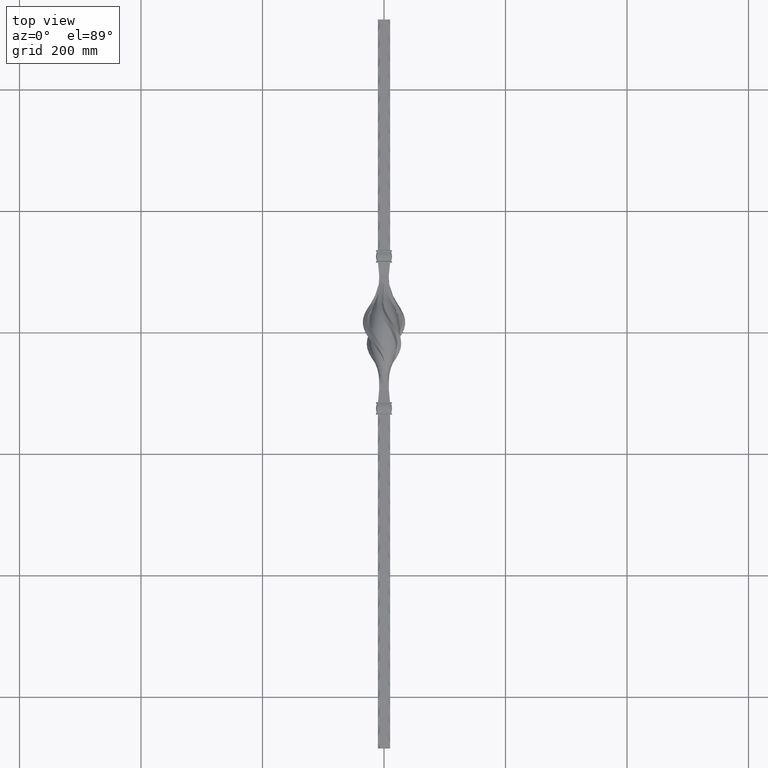
[diagram: clean part render]
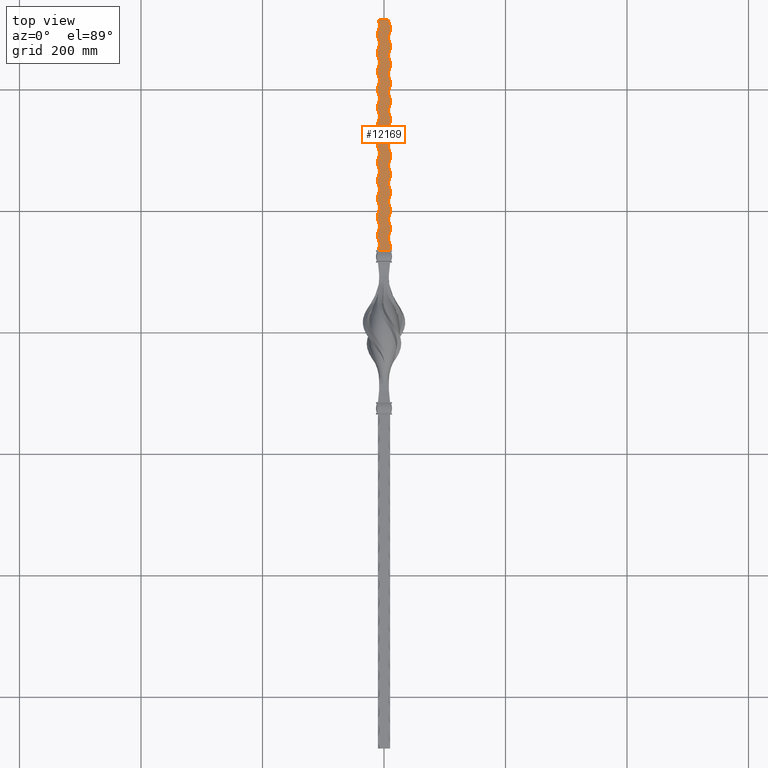
[diagram: same view with one face highlighted and labeled with its STEP entity id]
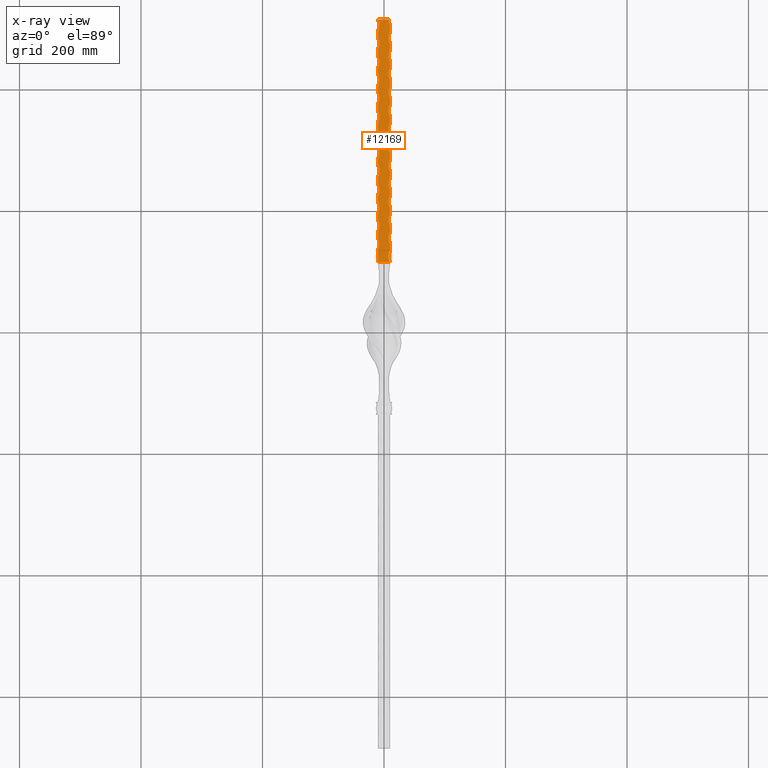
[diagram: x-ray of the same camera — body ghosted, the highlighted face saturated]
A machine part, top view. The second image highlights one B-rep face of the part: STEP entity #12169.
The next image is the same camera in x-ray: the body ghosted, the highlighted face saturated — about 0% of this face is hidden behind the body in this view.
In plain terms, the highlighted planar face has unit normal (0, 0, -1).
Its self-contained STEP definition (entity closure, byte-faithful):
#119 = LINE ( 'NONE', #20293, #838 ) ;
#448 = VERTEX_POINT ( 'NONE', #4737 ) ;
#496 = VERTEX_POINT ( 'NONE', #9096 ) ;
#573 = CARTESIAN_POINT ( 'NONE',  ( 28.74999999999810996, 335.0000000000000568, 10.00000000000000533 ) ) ;
#771 = CARTESIAN_POINT ( 'NONE',  ( -10.00000000000000000, 130.0000000000000000, 10.00000000000000533 ) ) ;
#838 = VECTOR ( 'NONE', #8634, 1000.000000000000000 ) ;
#866 = ORIENTED_EDGE ( 'NONE', *, *, #19109, .F. ) ;
#936 = CARTESIAN_POINT ( 'NONE',  ( 10.00000000000000000, 130.0000000000000000, 10.00000000000000533 ) ) ;
#1180 = VERTEX_POINT ( 'NONE', #9942 ) ;
#1424 = DIRECTION ( 'NONE',  ( -0.000000000000000000, -1.000000000000000000, -0.000000000000000000 ) ) ;
#1490 = ORIENTED_EDGE ( 'NONE', *, *, #21829, .F. ) ;
#1568 = VERTEX_POINT ( 'NONE', #8354 ) ;
#1588 = AXIS2_PLACEMENT_3D ( 'NONE', #17207, #6081, #6003 ) ;
#1601 = LINE ( 'NONE', #10842, #12088 ) ;
#1648 = CARTESIAN_POINT ( 'NONE',  ( -10.00000000000029132, 195.0000000000000568, 10.00000000000000533 ) ) ;
#1725 = ORIENTED_EDGE ( 'NONE', *, *, #19600, .F. ) ;
#1738 = EDGE_CURVE ( 'NONE', #7084, #19261, #13994, .T. ) ;
#1765 = EDGE_CURVE ( 'NONE', #8847, #1568, #6606, .T. ) ;
#1853 = EDGE_CURVE ( 'NONE', #5916, #5891, #21262, .T. ) ;
#1931 = CARTESIAN_POINT ( 'NONE',  ( 9.999999999998074429, 255.0000000000000568, 10.00000000000000533 ) ) ;
#2146 = EDGE_CURVE ( 'NONE', #12802, #26188, #18154, .T. ) ;
#2325 = CARTESIAN_POINT ( 'NONE',  ( 28.74999999999810996, 125.0000000000000000, 10.00000000000000533 ) ) ;
#2348 = ORIENTED_EDGE ( 'NONE', *, *, #1765, .F. ) ;
#2359 = DIRECTION ( 'NONE',  ( -1.000000000000000000, 0.000000000000000000, 0.000000000000000000 ) ) ;
#2425 = DIRECTION ( 'NONE',  ( -1.000000000000000000, 0.000000000000000000, 0.000000000000000000 ) ) ;
#2550 = CARTESIAN_POINT ( 'NONE',  ( 9.999999999998076206, 385.0000000000000000, 10.00000000000000533 ) ) ;
#2554 = EDGE_CURVE ( 'NONE', #25425, #20757, #19492, .T. ) ;
#2676 = DIRECTION ( 'NONE',  ( -1.000000000000000000, 0.000000000000000000, 0.000000000000000000 ) ) ;
#2790 = DIRECTION ( 'NONE',  ( -0.000000000000000000, -1.000000000000000000, -0.000000000000000000 ) ) ;
#2812 = CARTESIAN_POINT ( 'NONE',  ( -28.75000000000075318, 325.0000000000000568, 10.00000000000000533 ) ) ;
#2838 = VERTEX_POINT ( 'NONE', #18184 ) ;
#2880 = AXIS2_PLACEMENT_3D ( 'NONE', #20371, #11434, #11328 ) ;
#2893 = VERTEX_POINT ( 'NONE', #12645 ) ;
#2912 = VECTOR ( 'NONE', #27859, 1000.000000000000000 ) ;
#2990 = AXIS2_PLACEMENT_3D ( 'NONE', #22147, #13145, #9017 ) ;
#3002 = LINE ( 'NONE', #22564, #26957 ) ;
#3136 = CARTESIAN_POINT ( 'NONE',  ( -28.75000000000130385, 475.0000000000000568, 10.00000000000000533 ) ) ;
#3211 = EDGE_CURVE ( 'NONE', #6909, #5113, #9001, .T. ) ;
#3242 = VECTOR ( 'NONE', #20435, 1000.000000000000000 ) ;
#3345 = CARTESIAN_POINT ( 'NONE',  ( 9.999999999998076206, 475.0000000000000568, 10.00000000000000533 ) ) ;
#3443 = VECTOR ( 'NONE', #13553, 1000.000000000000000 ) ;
#3493 = EDGE_CURVE ( 'NONE', #1180, #2893, #11811, .T. ) ;
#3592 = CIRCLE ( 'NONE', #5307, 21.25000000000003197 ) ;
#3679 = CARTESIAN_POINT ( 'NONE',  ( -10.00000000000072653, 315.0000000000000568, 10.00000000000000533 ) ) ;
#3690 = VERTEX_POINT ( 'NONE', #24205 ) ;
#3745 = VERTEX_POINT ( 'NONE', #15485 ) ;
#3979 = ORIENTED_EDGE ( 'NONE', *, *, #6799, .F. ) ;
#4029 = VERTEX_POINT ( 'NONE', #24724 ) ;
#4060 = LINE ( 'NONE', #10410, #6471 ) ;
#4112 = DIRECTION ( 'NONE',  ( 0.000000000000000000, -0.000000000000000000, 1.000000000000000000 ) ) ;
#4198 = EDGE_CURVE ( 'NONE', #2838, #3690, #12152, .T. ) ;
#4252 = VECTOR ( 'NONE', #25484, 1000.000000000000000 ) ;
#4511 = VECTOR ( 'NONE', #16256, 1000.000000000000000 ) ;
#4573 = CARTESIAN_POINT ( 'NONE',  ( -28.75000000000108002, 415.0000000000000568, 10.00000000000000533 ) ) ;
#4708 = AXIS2_PLACEMENT_3D ( 'NONE', #2325, #20352, #2425 ) ;
#4713 = AXIS2_PLACEMENT_3D ( 'NONE', #9015, #6665, #24592 ) ;
#4737 = CARTESIAN_POINT ( 'NONE',  ( -10.00000000000029132, 215.0000000000000853, 10.00000000000000533 ) ) ;
#4776 = EDGE_CURVE ( 'NONE', #27488, #7470, #9636, .T. ) ;
#4807 = CIRCLE ( 'NONE', #10435, 21.25000000000003197 ) ;
#4820 = EDGE_CURVE ( 'NONE', #6678, #28637, #15565, .T. ) ;
#4877 = CARTESIAN_POINT ( 'NONE',  ( -10.00000000000000000, 114.9999999999999858, 10.00000000000000533 ) ) ;
#4917 = DIRECTION ( 'NONE',  ( 0.000000000000000000, -0.000000000000000000, 1.000000000000000000 ) ) ;
#4967 = DIRECTION ( 'NONE',  ( -1.000000000000000000, 0.000000000000000000, 0.000000000000000000 ) ) ;
#5034 = CARTESIAN_POINT ( 'NONE',  ( -10.00000000000000000, 130.0000000000000000, 10.00000000000000533 ) ) ;
#5060 = AXIS2_PLACEMENT_3D ( 'NONE', #21716, #4112, #10938 ) ;
#5113 = VERTEX_POINT ( 'NONE', #22586 ) ;
#5307 = AXIS2_PLACEMENT_3D ( 'NONE', #573, #11874, #20818 ) ;
#5425 = LINE ( 'NONE', #21426, #26608 ) ;
#5447 = CARTESIAN_POINT ( 'NONE',  ( 9.999999999998074429, 235.0000000000000284, 10.00000000000000533 ) ) ;
#5633 = DIRECTION ( 'NONE',  ( -0.000000000000000000, -1.000000000000000000, -0.000000000000000000 ) ) ;
#5682 = DIRECTION ( 'NONE',  ( 1.000000000000000000, 0.000000000000000000, 0.000000000000000000 ) ) ;
#5734 = EDGE_CURVE ( 'NONE', #27488, #23081, #27919, .T. ) ;
#5758 = EDGE_CURVE ( 'NONE', #15497, #26517, #27538, .T. ) ;
#5796 = DIRECTION ( 'NONE',  ( -1.000000000000000000, 0.000000000000000000, 0.000000000000000000 ) ) ;
#5817 = VERTEX_POINT ( 'NONE', #3679 ) ;
#5844 = ORIENTED_EDGE ( 'NONE', *, *, #3493, .F. ) ;
#5889 = VECTOR ( 'NONE', #22095, 1000.000000000000000 ) ;
#5891 = VERTEX_POINT ( 'NONE', #17339 ) ;
#5916 = VERTEX_POINT ( 'NONE', #6309 ) ;
#5991 = VECTOR ( 'NONE', #8640, 1000.000000000000000 ) ;
#5994 = EDGE_CURVE ( 'NONE', #27847, #13154, #8282, .T. ) ;
#6003 = DIRECTION ( 'NONE',  ( -1.000000000000000000, 0.000000000000000000, 0.000000000000000000 ) ) ;
#6028 = DIRECTION ( 'NONE',  ( 0.000000000000000000, -0.000000000000000000, 1.000000000000000000 ) ) ;
#6080 = ORIENTED_EDGE ( 'NONE', *, *, #17722, .T. ) ;
#6081 = DIRECTION ( 'NONE',  ( 0.000000000000000000, -0.000000000000000000, 1.000000000000000000 ) ) ;
#6168 = VECTOR ( 'NONE', #20648, 1000.000000000000000 ) ;
#6217 = LINE ( 'NONE', #23109, #4511 ) ;
#6220 = CARTESIAN_POINT ( 'NONE',  ( 10.00000000000000000, 130.0000000000000000, 10.00000000000000533 ) ) ;
#6275 = CARTESIAN_POINT ( 'NONE',  ( -28.75000000000031619, 205.0000000000000568, 10.00000000000000533 ) ) ;
#6309 = CARTESIAN_POINT ( 'NONE',  ( -10.00000000000105516, 405.0000000000000000, 10.00000000000000533 ) ) ;
#6384 = ORIENTED_EDGE ( 'NONE', *, *, #8438, .T. ) ;
#6471 = VECTOR ( 'NONE', #14896, 1000.000000000000000 ) ;
#6606 = CIRCLE ( 'NONE', #10210, 21.25000000000002487 ) ;
#6627 = CARTESIAN_POINT ( 'NONE',  ( -10.00000000000050804, 275.0000000000000000, 10.00000000000000533 ) ) ;
#6636 = CARTESIAN_POINT ( 'NONE',  ( 9.999999999998074429, 375.0000000000000568, 10.00000000000000533 ) ) ;
#6665 = DIRECTION ( 'NONE',  ( 0.000000000000000000, -0.000000000000000000, 1.000000000000000000 ) ) ;
#6678 = VERTEX_POINT ( 'NONE', #16784 ) ;
#6699 = CARTESIAN_POINT ( 'NONE',  ( 9.999999999998076206, 405.0000000000000000, 10.00000000000000533 ) ) ;
#6776 = CARTESIAN_POINT ( 'NONE',  ( -10.00000000000116351, 435.0000000000000568, 10.00000000000000533 ) ) ;
#6799 = EDGE_CURVE ( 'NONE', #27029, #25618, #24248, .T. ) ;
#6909 = VERTEX_POINT ( 'NONE', #3345 ) ;
#6925 = DIRECTION ( 'NONE',  ( -1.000000000000000000, 0.000000000000000000, 0.000000000000000000 ) ) ;
#6963 = VERTEX_POINT ( 'NONE', #14752 ) ;
#7055 = CARTESIAN_POINT ( 'NONE',  ( -10.00000000000018296, 185.0000000000000568, 10.00000000000000533 ) ) ;
#7061 = CARTESIAN_POINT ( 'NONE',  ( -10.00000000000127365, 465.0000000000000000, 10.00000000000000533 ) ) ;
#7084 = VERTEX_POINT ( 'NONE', #6699 ) ;
#7115 = CARTESIAN_POINT ( 'NONE',  ( 28.74999999999810996, 485.0000000000000568, 10.00000000000000533 ) ) ;
#7161 = ORIENTED_EDGE ( 'NONE', *, *, #17005, .F. ) ;
#7207 = AXIS2_PLACEMENT_3D ( 'NONE', #17359, #23942, #5796 ) ;
#7289 = CARTESIAN_POINT ( 'NONE',  ( -28.75000000000141043, 505.0000000000000000, 10.00000000000000533 ) ) ;
#7367 = CIRCLE ( 'NONE', #4713, 21.25000000000002487 ) ;
#7398 = ORIENTED_EDGE ( 'NONE', *, *, #15160, .F. ) ;
#7400 = ORIENTED_EDGE ( 'NONE', *, *, #9496, .T. ) ;
#7470 = VERTEX_POINT ( 'NONE', #6627 ) ;
#7626 = FACE_OUTER_BOUND ( 'NONE', #25868, .T. ) ;
#7631 = ORIENTED_EDGE ( 'NONE', *, *, #2554, .F. ) ;
#7646 = LINE ( 'NONE', #936, #12202 ) ;
#7722 = EDGE_CURVE ( 'NONE', #15475, #18776, #27653, .T. ) ;
#7876 = VERTEX_POINT ( 'NONE', #18555 ) ;
#7977 = DIRECTION ( 'NONE',  ( -0.000000000000000000, -1.000000000000000000, -0.000000000000000000 ) ) ;
#8029 = ORIENTED_EDGE ( 'NONE', *, *, #12702, .F. ) ;
#8070 = CIRCLE ( 'NONE', #9784, 21.25000000000002487 ) ;
#8196 = AXIS2_PLACEMENT_3D ( 'NONE', #12869, #6028, #21866 ) ;
#8282 = CIRCLE ( 'NONE', #26919, 21.25000000000003197 ) ;
#8293 = CARTESIAN_POINT ( 'NONE',  ( -28.75000000000053646, 265.0000000000000000, 10.00000000000000533 ) ) ;
#8298 = CARTESIAN_POINT ( 'NONE',  ( -10.00000000000000000, 130.0000000000000000, 10.00000000000000533 ) ) ;
#8354 = CARTESIAN_POINT ( 'NONE',  ( -10.00000000000007283, 155.0000000000000284, 10.00000000000000533 ) ) ;
#8371 = ORIENTED_EDGE ( 'NONE', *, *, #9973, .F. ) ;
#8438 = EDGE_CURVE ( 'NONE', #15497, #10127, #19297, .T. ) ;
#8634 = DIRECTION ( 'NONE',  ( -0.000000000000000000, -1.000000000000000000, -0.000000000000000000 ) ) ;
#8640 = DIRECTION ( 'NONE',  ( -0.000000000000000000, -1.000000000000000000, -0.000000000000000000 ) ) ;
#8766 = CARTESIAN_POINT ( 'NONE',  ( -10.00000000000000000, 130.0000000000000000, 10.00000000000000533 ) ) ;
#8847 = VERTEX_POINT ( 'NONE', #27958 ) ;
#8853 = CARTESIAN_POINT ( 'NONE',  ( -28.75000000000010303, 145.0000000000000284, 10.00000000000000533 ) ) ;
#8864 = EDGE_CURVE ( 'NONE', #15715, #496, #28630, .T. ) ;
#9001 = LINE ( 'NONE', #24247, #19152 ) ;
#9015 = CARTESIAN_POINT ( 'NONE',  ( -28.75000000000086686, 355.0000000000000568, 10.00000000000000533 ) ) ;
#9017 = DIRECTION ( 'NONE',  ( -1.000000000000000000, 0.000000000000000000, 0.000000000000000000 ) ) ;
#9096 = CARTESIAN_POINT ( 'NONE',  ( 10.00000000000000000, 114.9999999999999858, 10.00000000000000533 ) ) ;
#9164 = AXIS2_PLACEMENT_3D ( 'NONE', #22238, #13046, #19930 ) ;
#9222 = CIRCLE ( 'NONE', #18713, 21.25000000000002487 ) ;
#9496 = EDGE_CURVE ( 'NONE', #16437, #14079, #14746, .T. ) ;
#9507 = ORIENTED_EDGE ( 'NONE', *, *, #1853, .T. ) ;
#9636 = CIRCLE ( 'NONE', #26073, 21.25000000000002842 ) ;
#9770 = DIRECTION ( 'NONE',  ( 0.000000000000000000, -0.000000000000000000, 1.000000000000000000 ) ) ;
#9784 = AXIS2_PLACEMENT_3D ( 'NONE', #2812, #11785, #18397 ) ;
#9795 = ORIENTED_EDGE ( 'NONE', *, *, #20478, .F. ) ;
#9815 = DIRECTION ( 'NONE',  ( 0.000000000000000000, -0.000000000000000000, 1.000000000000000000 ) ) ;
#9942 = CARTESIAN_POINT ( 'NONE',  ( -10.00000000000000000, 515.0000000000000000, 10.00000000000000533 ) ) ;
#9973 = EDGE_CURVE ( 'NONE', #12977, #14079, #7367, .T. ) ;
#10029 = EDGE_CURVE ( 'NONE', #5817, #22692, #8070, .T. ) ;
#10092 = CARTESIAN_POINT ( 'NONE',  ( -10.00000000000000000, 114.9999999999999858, 10.00000000000000533 ) ) ;
#10127 = VERTEX_POINT ( 'NONE', #14318 ) ;
#10182 = EDGE_CURVE ( 'NONE', #25618, #12802, #13665, .T. ) ;
#10210 = AXIS2_PLACEMENT_3D ( 'NONE', #8853, #13474, #2359 ) ;
#10293 = CARTESIAN_POINT ( 'NONE',  ( -10.00000000000000000, 130.0000000000000000, 10.00000000000000533 ) ) ;
#10307 = CIRCLE ( 'NONE', #21259, 21.25000000000003197 ) ;
#10362 = VECTOR ( 'NONE', #15002, 1000.000000000000000 ) ;
#10369 = AXIS2_PLACEMENT_3D ( 'NONE', #15085, #24283, #26483 ) ;
#10410 = CARTESIAN_POINT ( 'NONE',  ( -10.00000000000000000, 130.0000000000000000, 10.00000000000000533 ) ) ;
#10435 = AXIS2_PLACEMENT_3D ( 'NONE', #27709, #25298, #18811 ) ;
#10517 = CARTESIAN_POINT ( 'NONE',  ( -10.00000000000072653, 335.0000000000000568, 10.00000000000000533 ) ) ;
#10649 = DIRECTION ( 'NONE',  ( -1.000000000000000000, 0.000000000000000000, 0.000000000000000000 ) ) ;
#10662 = ORIENTED_EDGE ( 'NONE', *, *, #18985, .F. ) ;
#10842 = CARTESIAN_POINT ( 'NONE',  ( 10.00000000000000000, 130.0000000000000000, 10.00000000000000533 ) ) ;
#10896 = ORIENTED_EDGE ( 'NONE', *, *, #10182, .F. ) ;
#10938 = DIRECTION ( 'NONE',  ( -1.000000000000000000, 0.000000000000000000, 0.000000000000000000 ) ) ;
#11019 = AXIS2_PLACEMENT_3D ( 'NONE', #25086, #9815, #25180 ) ;
#11090 = VERTEX_POINT ( 'NONE', #23642 ) ;
#11297 = EDGE_CURVE ( 'NONE', #5916, #10127, #24738, .T. ) ;
#11328 = DIRECTION ( 'NONE',  ( -1.000000000000000000, 0.000000000000000000, 0.000000000000000000 ) ) ;
#11421 = LINE ( 'NONE', #28273, #10362 ) ;
#11434 = DIRECTION ( 'NONE',  ( 0.000000000000000000, -0.000000000000000000, 1.000000000000000000 ) ) ;
#11442 = DIRECTION ( 'NONE',  ( 0.000000000000000000, -0.000000000000000000, 1.000000000000000000 ) ) ;
#11460 = CARTESIAN_POINT ( 'NONE',  ( 28.74999999999810996, 305.0000000000000568, 10.00000000000000533 ) ) ;
#11646 = CARTESIAN_POINT ( 'NONE',  ( 9.999999999998074429, 135.0000000000000000, 10.00000000000000533 ) ) ;
#11665 = EDGE_CURVE ( 'NONE', #3690, #14425, #23295, .T. ) ;
#11785 = DIRECTION ( 'NONE',  ( 0.000000000000000000, -0.000000000000000000, 1.000000000000000000 ) ) ;
#11811 = LINE ( 'NONE', #14828, #20850 ) ;
#11865 = VECTOR ( 'NONE', #25189, 1000.000000000000000 ) ;
#11874 = DIRECTION ( 'NONE',  ( 0.000000000000000000, -0.000000000000000000, 1.000000000000000000 ) ) ;
#11875 = CARTESIAN_POINT ( 'NONE',  ( 9.999999999998074429, 225.0000000000000853, 10.00000000000000533 ) ) ;
#12027 = EDGE_CURVE ( 'NONE', #27847, #26517, #13568, .T. ) ;
#12041 = ORIENTED_EDGE ( 'NONE', *, *, #2146, .F. ) ;
#12088 = VECTOR ( 'NONE', #28603, 1000.000000000000000 ) ;
#12090 = DIRECTION ( 'NONE',  ( 0.000000000000000000, -0.000000000000000000, 1.000000000000000000 ) ) ;
#12113 = CARTESIAN_POINT ( 'NONE',  ( 9.999999999998074429, 285.0000000000000568, 10.00000000000000533 ) ) ;
#12152 = LINE ( 'NONE', #14136, #6168 ) ;
#12169 = ADVANCED_FACE ( 'NONE', ( #7626 ), #28792, .F. ) ;
#12172 = EDGE_CURVE ( 'NONE', #12600, #27155, #24680, .T. ) ;
#12202 = VECTOR ( 'NONE', #16519, 1000.000000000000000 ) ;
#12278 = VERTEX_POINT ( 'NONE', #11646 ) ;
#12287 = CARTESIAN_POINT ( 'NONE',  ( -10.00000000000050804, 255.0000000000000000, 10.00000000000000533 ) ) ;
#12318 = DIRECTION ( 'NONE',  ( -0.000000000000000000, -1.000000000000000000, -0.000000000000000000 ) ) ;
#12429 = CARTESIAN_POINT ( 'NONE',  ( -10.00000000000127365, 485.0000000000000568, 10.00000000000000533 ) ) ;
#12528 = ORIENTED_EDGE ( 'NONE', *, *, #26931, .F. ) ;
#12600 = VERTEX_POINT ( 'NONE', #13453 ) ;
#12634 = EDGE_CURVE ( 'NONE', #13733, #1180, #27779, .T. ) ;
#12636 = CIRCLE ( 'NONE', #18200, 21.25000000000003197 ) ;
#12645 = CARTESIAN_POINT ( 'NONE',  ( 7.499999999998077982, 515.0000000000000000, 10.00000000000000533 ) ) ;
#12664 = CARTESIAN_POINT ( 'NONE',  ( -10.00000000000000000, 130.0000000000000000, 10.00000000000000533 ) ) ;
#12702 = EDGE_CURVE ( 'NONE', #16532, #27029, #15277, .T. ) ;
#12802 = VERTEX_POINT ( 'NONE', #1931 ) ;
#12869 = CARTESIAN_POINT ( 'NONE',  ( -28.75000000000020961, 175.0000000000000568, 10.00000000000000533 ) ) ;
#12893 = ORIENTED_EDGE ( 'NONE', *, *, #17350, .F. ) ;
#12977 = VERTEX_POINT ( 'NONE', #27360 ) ;
#13046 = DIRECTION ( 'NONE',  ( 0.000000000000000000, -0.000000000000000000, 1.000000000000000000 ) ) ;
#13145 = DIRECTION ( 'NONE',  ( 0.000000000000000000, -0.000000000000000000, 1.000000000000000000 ) ) ;
#13154 = VERTEX_POINT ( 'NONE', #12429 ) ;
#13188 = ORIENTED_EDGE ( 'NONE', *, *, #13866, .F. ) ;
#13284 = CARTESIAN_POINT ( 'NONE',  ( 10.00000000000000000, 130.0000000000000000, 10.00000000000000533 ) ) ;
#13298 = VECTOR ( 'NONE', #5633, 1000.000000000000000 ) ;
#13366 = ORIENTED_EDGE ( 'NONE', *, *, #12172, .F. ) ;
#13369 = ORIENTED_EDGE ( 'NONE', *, *, #17925, .F. ) ;
#13453 = CARTESIAN_POINT ( 'NONE',  ( 9.999999999998074429, 205.0000000000000568, 10.00000000000000533 ) ) ;
#13474 = DIRECTION ( 'NONE',  ( 0.000000000000000000, -0.000000000000000000, 1.000000000000000000 ) ) ;
#13553 = DIRECTION ( 'NONE',  ( -0.000000000000000000, -1.000000000000000000, -0.000000000000000000 ) ) ;
#13568 = LINE ( 'NONE', #8298, #24322 ) ;
#13646 = ORIENTED_EDGE ( 'NONE', *, *, #1738, .F. ) ;
#13665 = LINE ( 'NONE', #18973, #13298 ) ;
#13670 = ORIENTED_EDGE ( 'NONE', *, *, #27157, .F. ) ;
#13690 = CARTESIAN_POINT ( 'NONE',  ( 28.74999999999810996, 245.0000000000000568, 10.00000000000000533 ) ) ;
#13730 = CARTESIAN_POINT ( 'NONE',  ( 9.999999999998076206, 505.0000000000000000, 10.00000000000000533 ) ) ;
#13733 = VERTEX_POINT ( 'NONE', #14258 ) ;
#13866 = EDGE_CURVE ( 'NONE', #19261, #20094, #11421, .T. ) ;
#13922 = EDGE_CURVE ( 'NONE', #16437, #5891, #16634, .T. ) ;
#13945 = DIRECTION ( 'NONE',  ( 0.000000000000000000, -0.000000000000000000, 1.000000000000000000 ) ) ;
#13975 = ORIENTED_EDGE ( 'NONE', *, *, #8864, .T. ) ;
#13994 = CIRCLE ( 'NONE', #7207, 21.25000000000003197 ) ;
#14079 = VERTEX_POINT ( 'NONE', #15870 ) ;
#14085 = ORIENTED_EDGE ( 'NONE', *, *, #5994, .F. ) ;
#14136 = CARTESIAN_POINT ( 'NONE',  ( 10.00000000000000000, 130.0000000000000000, 10.00000000000000533 ) ) ;
#14253 = ORIENTED_EDGE ( 'NONE', *, *, #28428, .T. ) ;
#14258 = CARTESIAN_POINT ( 'NONE',  ( -10.00000000000138201, 495.0000000000000000, 10.00000000000000533 ) ) ;
#14283 = VERTEX_POINT ( 'NONE', #11875 ) ;
#14318 = CARTESIAN_POINT ( 'NONE',  ( -10.00000000000105516, 425.0000000000000568, 10.00000000000000533 ) ) ;
#14425 = VERTEX_POINT ( 'NONE', #26015 ) ;
#14527 = DIRECTION ( 'NONE',  ( -1.000000000000000000, 0.000000000000000000, 0.000000000000000000 ) ) ;
#14584 = AXIS2_PLACEMENT_3D ( 'NONE', #16086, #20732, #4967 ) ;
#14613 = ORIENTED_EDGE ( 'NONE', *, *, #21546, .F. ) ;
#14695 = CARTESIAN_POINT ( 'NONE',  ( -10.00000000000000000, 130.0000000000000000, 10.00000000000000533 ) ) ;
#14746 = LINE ( 'NONE', #15493, #5991 ) ;
#14752 = CARTESIAN_POINT ( 'NONE',  ( -10.00000000000061817, 305.0000000000000568, 10.00000000000000533 ) ) ;
#14828 = CARTESIAN_POINT ( 'NONE',  ( -10.00000000000000000, 515.0000000000000000, 10.00000000000000533 ) ) ;
#14882 = ORIENTED_EDGE ( 'NONE', *, *, #5734, .T. ) ;
#14896 = DIRECTION ( 'NONE',  ( -0.000000000000000000, -1.000000000000000000, -0.000000000000000000 ) ) ;
#14926 = ORIENTED_EDGE ( 'NONE', *, *, #7722, .T. ) ;
#14948 = CARTESIAN_POINT ( 'NONE',  ( 9.999999999998076206, 495.0000000000000568, 10.00000000000000533 ) ) ;
#14998 = CARTESIAN_POINT ( 'NONE',  ( -28.75000000000064304, 295.0000000000000568, 10.00000000000000533 ) ) ;
#15002 = DIRECTION ( 'NONE',  ( -0.000000000000000000, -1.000000000000000000, -0.000000000000000000 ) ) ;
#15029 = LINE ( 'NONE', #14695, #27162 ) ;
#15085 = CARTESIAN_POINT ( 'NONE',  ( 28.74999999999810996, 155.0000000000000284, 10.00000000000000533 ) ) ;
#15099 = ORIENTED_EDGE ( 'NONE', *, *, #26888, .F. ) ;
#15160 = EDGE_CURVE ( 'NONE', #25502, #23359, #26225, .T. ) ;
#15241 = CARTESIAN_POINT ( 'NONE',  ( 9.999999999998074429, 345.0000000000000568, 10.00000000000000533 ) ) ;
#15277 = LINE ( 'NONE', #15891, #3443 ) ;
#15448 = AXIS2_PLACEMENT_3D ( 'NONE', #7289, #13945, #24902 ) ;
#15475 = VERTEX_POINT ( 'NONE', #1648 ) ;
#15485 = CARTESIAN_POINT ( 'NONE',  ( 9.999999999998076206, 445.0000000000000568, 10.00000000000000533 ) ) ;
#15493 = CARTESIAN_POINT ( 'NONE',  ( -10.00000000000000000, 130.0000000000000000, 10.00000000000000533 ) ) ;
#15497 = VERTEX_POINT ( 'NONE', #6776 ) ;
#15565 = CIRCLE ( 'NONE', #5060, 21.25000000000003197 ) ;
#15715 = VERTEX_POINT ( 'NONE', #4877 ) ;
#15774 = CARTESIAN_POINT ( 'NONE',  ( -10.00000000000000000, 130.0000000000000000, 10.00000000000000533 ) ) ;
#15800 = LINE ( 'NONE', #15774, #3242 ) ;
#15870 = CARTESIAN_POINT ( 'NONE',  ( -10.00000000000083666, 365.0000000000000568, 10.00000000000000533 ) ) ;
#15891 = CARTESIAN_POINT ( 'NONE',  ( 10.00000000000000000, 130.0000000000000000, 10.00000000000000533 ) ) ;
#16086 = CARTESIAN_POINT ( 'NONE',  ( 28.74999999999810996, 185.0000000000000568, 10.00000000000000533 ) ) ;
#16111 = DIRECTION ( 'NONE',  ( -1.000000000000000000, 0.000000000000000000, 0.000000000000000000 ) ) ;
#16200 = VECTOR ( 'NONE', #28217, 1000.000000000000000 ) ;
#16253 = EDGE_CURVE ( 'NONE', #12977, #22692, #22762, .T. ) ;
#16256 = DIRECTION ( 'NONE',  ( -0.000000000000000000, -1.000000000000000000, -0.000000000000000000 ) ) ;
#16352 = CARTESIAN_POINT ( 'NONE',  ( -10.00000000000040146, 245.0000000000000568, 10.00000000000000533 ) ) ;
#16390 = VECTOR ( 'NONE', #1424, 1000.000000000000000 ) ;
#16437 = VERTEX_POINT ( 'NONE', #26935 ) ;
#16519 = DIRECTION ( 'NONE',  ( -0.000000000000000000, -1.000000000000000000, -0.000000000000000000 ) ) ;
#16532 = VERTEX_POINT ( 'NONE', #18631 ) ;
#16634 = CIRCLE ( 'NONE', #2990, 21.25000000000002842 ) ;
#16784 = CARTESIAN_POINT ( 'NONE',  ( 9.999999999998076206, 435.0000000000000568, 10.00000000000000533 ) ) ;
#17005 = EDGE_CURVE ( 'NONE', #5113, #3745, #21514, .T. ) ;
#17207 = CARTESIAN_POINT ( 'NONE',  ( -28.75000000000119016, 445.0000000000000568, 10.00000000000000533 ) ) ;
#17221 = ORIENTED_EDGE ( 'NONE', *, *, #10029, .F. ) ;
#17242 = ORIENTED_EDGE ( 'NONE', *, *, #3211, .F. ) ;
#17339 = CARTESIAN_POINT ( 'NONE',  ( -10.00000000000094502, 395.0000000000000000, 10.00000000000000533 ) ) ;
#17350 = EDGE_CURVE ( 'NONE', #27155, #2838, #18683, .T. ) ;
#17359 = CARTESIAN_POINT ( 'NONE',  ( 28.74999999999810996, 395.0000000000000000, 10.00000000000000533 ) ) ;
#17455 = ORIENTED_EDGE ( 'NONE', *, *, #26321, .T. ) ;
#17475 = CARTESIAN_POINT ( 'NONE',  ( 9.999999999998074429, 265.0000000000000000, 10.00000000000000533 ) ) ;
#17722 = EDGE_CURVE ( 'NONE', #5817, #6963, #26613, .T. ) ;
#17815 = ORIENTED_EDGE ( 'NONE', *, *, #4776, .F. ) ;
#17819 = AXIS2_PLACEMENT_3D ( 'NONE', #4573, #26806, #24605 ) ;
#17925 = EDGE_CURVE ( 'NONE', #7876, #23081, #28356, .T. ) ;
#18154 = CIRCLE ( 'NONE', #24157, 21.25000000000003197 ) ;
#18184 = CARTESIAN_POINT ( 'NONE',  ( 9.999999999998074429, 175.0000000000000568, 10.00000000000000533 ) ) ;
#18200 = AXIS2_PLACEMENT_3D ( 'NONE', #11460, #22405, #2676 ) ;
#18297 = AXIS2_PLACEMENT_3D ( 'NONE', #7115, #11442, #16111 ) ;
#18326 = CARTESIAN_POINT ( 'NONE',  ( 9.999999999998076206, 415.0000000000000568, 10.00000000000000533 ) ) ;
#18397 = DIRECTION ( 'NONE',  ( -1.000000000000000000, 0.000000000000000000, 0.000000000000000000 ) ) ;
#18407 = ORIENTED_EDGE ( 'NONE', *, *, #4820, .F. ) ;
#18555 = CARTESIAN_POINT ( 'NONE',  ( -10.00000000000040146, 225.0000000000000284, 10.00000000000000533 ) ) ;
#18631 = CARTESIAN_POINT ( 'NONE',  ( 9.999999999998074429, 295.0000000000000568, 10.00000000000000533 ) ) ;
#18683 = CIRCLE ( 'NONE', #14584, 21.25000000000003197 ) ;
#18713 = AXIS2_PLACEMENT_3D ( 'NONE', #14998, #23992, #28462 ) ;
#18753 = DIRECTION ( 'NONE',  ( -1.000000000000000000, 0.000000000000000000, 0.000000000000000000 ) ) ;
#18776 = VERTEX_POINT ( 'NONE', #7055 ) ;
#18811 = DIRECTION ( 'NONE',  ( -1.000000000000000000, 0.000000000000000000, 0.000000000000000000 ) ) ;
#18973 = CARTESIAN_POINT ( 'NONE',  ( 10.00000000000000000, 130.0000000000000000, 10.00000000000000533 ) ) ;
#18985 = EDGE_CURVE ( 'NONE', #12278, #496, #25711, .T. ) ;
#19042 = ORIENTED_EDGE ( 'NONE', *, *, #25762, .F. ) ;
#19109 = EDGE_CURVE ( 'NONE', #25678, #11090, #119, .T. ) ;
#19138 = AXIS2_PLACEMENT_3D ( 'NONE', #22981, #9770, #18753 ) ;
#19152 = VECTOR ( 'NONE', #22293, 1000.000000000000000 ) ;
#19261 = VERTEX_POINT ( 'NONE', #2550 ) ;
#19297 = LINE ( 'NONE', #12664, #21047 ) ;
#19325 = ORIENTED_EDGE ( 'NONE', *, *, #4198, .F. ) ;
#19372 = CIRCLE ( 'NONE', #18297, 21.25000000000003197 ) ;
#19492 = LINE ( 'NONE', #23029, #11865 ) ;
#19600 = EDGE_CURVE ( 'NONE', #22314, #6963, #9222, .T. ) ;
#19605 = DIRECTION ( 'NONE',  ( 0.000000000000000000, 0.000000000000000000, -1.000000000000000000 ) ) ;
#19689 = EDGE_CURVE ( 'NONE', #2893, #25425, #24540, .T. ) ;
#19787 = DIRECTION ( 'NONE',  ( 0.000000000000000000, -0.000000000000000000, 1.000000000000000000 ) ) ;
#19826 = DIRECTION ( 'NONE',  ( 0.000000000000000000, -0.000000000000000000, 1.000000000000000000 ) ) ;
#19930 = DIRECTION ( 'NONE',  ( -1.000000000000000000, 0.000000000000000000, 0.000000000000000000 ) ) ;
#19969 = ORIENTED_EDGE ( 'NONE', *, *, #11297, .F. ) ;
#19986 = EDGE_CURVE ( 'NONE', #13733, #13154, #6217, .T. ) ;
#20028 = EDGE_CURVE ( 'NONE', #26188, #14283, #21887, .T. ) ;
#20060 = ORIENTED_EDGE ( 'NONE', *, *, #27627, .F. ) ;
#20094 = VERTEX_POINT ( 'NONE', #6636 ) ;
#20192 = DIRECTION ( 'NONE',  ( 0.000000000000000000, -0.000000000000000000, 1.000000000000000000 ) ) ;
#20293 = CARTESIAN_POINT ( 'NONE',  ( 10.00000000000000000, 130.0000000000000000, 10.00000000000000533 ) ) ;
#20321 = CARTESIAN_POINT ( 'NONE',  ( -10.00000000000116351, 455.0000000000000568, 10.00000000000000533 ) ) ;
#20352 = DIRECTION ( 'NONE',  ( 0.000000000000000000, -0.000000000000000000, 1.000000000000000000 ) ) ;
#20371 = CARTESIAN_POINT ( 'NONE',  ( 28.74999999999810996, 365.0000000000000568, 10.00000000000000533 ) ) ;
#20435 = DIRECTION ( 'NONE',  ( -0.000000000000000000, -1.000000000000000000, -0.000000000000000000 ) ) ;
#20478 = EDGE_CURVE ( 'NONE', #14425, #12278, #7646, .T. ) ;
#20558 = CARTESIAN_POINT ( 'NONE',  ( -10.00000000000061817, 285.0000000000000568, 10.00000000000000533 ) ) ;
#20647 = DIRECTION ( 'NONE',  ( -0.000000000000000000, -1.000000000000000000, -0.000000000000000000 ) ) ;
#20648 = DIRECTION ( 'NONE',  ( -0.000000000000000000, -1.000000000000000000, -0.000000000000000000 ) ) ;
#20732 = DIRECTION ( 'NONE',  ( 0.000000000000000000, -0.000000000000000000, 1.000000000000000000 ) ) ;
#20757 = VERTEX_POINT ( 'NONE', #14948 ) ;
#20758 = VECTOR ( 'NONE', #2790, 1000.000000000000000 ) ;
#20794 = ORIENTED_EDGE ( 'NONE', *, *, #12027, .T. ) ;
#20818 = DIRECTION ( 'NONE',  ( -1.000000000000000000, 0.000000000000000000, 0.000000000000000000 ) ) ;
#20850 = VECTOR ( 'NONE', #5682, 1000.000000000000000 ) ;
#21047 = VECTOR ( 'NONE', #7977, 1000.000000000000000 ) ;
#21259 = AXIS2_PLACEMENT_3D ( 'NONE', #6275, #19826, #23982 ) ;
#21262 = LINE ( 'NONE', #10293, #25756 ) ;
#21289 = ORIENTED_EDGE ( 'NONE', *, *, #13922, .F. ) ;
#21426 = CARTESIAN_POINT ( 'NONE',  ( -10.00000000000000000, 130.0000000000000000, 10.00000000000000533 ) ) ;
#21475 = EDGE_CURVE ( 'NONE', #8847, #15715, #15800, .T. ) ;
#21514 = CIRCLE ( 'NONE', #11019, 21.25000000000003197 ) ;
#21546 = EDGE_CURVE ( 'NONE', #23359, #25678, #3592, .T. ) ;
#21716 = CARTESIAN_POINT ( 'NONE',  ( 28.74999999999810996, 425.0000000000000568, 10.00000000000000533 ) ) ;
#21829 = EDGE_CURVE ( 'NONE', #11090, #16532, #12636, .T. ) ;
#21866 = DIRECTION ( 'NONE',  ( -1.000000000000000000, 0.000000000000000000, 0.000000000000000000 ) ) ;
#21887 = LINE ( 'NONE', #25549, #16390 ) ;
#21952 = ORIENTED_EDGE ( 'NONE', *, *, #11665, .F. ) ;
#22076 = VECTOR ( 'NONE', #26429, 1000.000000000000000 ) ;
#22095 = DIRECTION ( 'NONE',  ( -0.000000000000000000, -1.000000000000000000, -0.000000000000000000 ) ) ;
#22147 = CARTESIAN_POINT ( 'NONE',  ( -28.75000000000097344, 385.0000000000000000, 10.00000000000000533 ) ) ;
#22238 = CARTESIAN_POINT ( 'NONE',  ( 28.74999999999810996, 515.0000000000000000, 10.00000000000000533 ) ) ;
#22293 = DIRECTION ( 'NONE',  ( -0.000000000000000000, -1.000000000000000000, -0.000000000000000000 ) ) ;
#22301 = EDGE_CURVE ( 'NONE', #20094, #25502, #25488, .T. ) ;
#22314 = VERTEX_POINT ( 'NONE', #20558 ) ;
#22405 = DIRECTION ( 'NONE',  ( 0.000000000000000000, -0.000000000000000000, 1.000000000000000000 ) ) ;
#22564 = CARTESIAN_POINT ( 'NONE',  ( 10.00000000000000000, 130.0000000000000000, 10.00000000000000533 ) ) ;
#22586 = CARTESIAN_POINT ( 'NONE',  ( 9.999999999998076206, 465.0000000000000568, 10.00000000000000533 ) ) ;
#22692 = VERTEX_POINT ( 'NONE', #10517 ) ;
#22762 = LINE ( 'NONE', #23182, #16200 ) ;
#22981 = CARTESIAN_POINT ( 'NONE',  ( 28.74999999999810996, 275.0000000000000000, 10.00000000000000533 ) ) ;
#23029 = CARTESIAN_POINT ( 'NONE',  ( 10.00000000000000000, 130.0000000000000000, 10.00000000000000533 ) ) ;
#23081 = VERTEX_POINT ( 'NONE', #16352 ) ;
#23103 = ORIENTED_EDGE ( 'NONE', *, *, #22301, .F. ) ;
#23109 = CARTESIAN_POINT ( 'NONE',  ( -10.00000000000000000, 130.0000000000000000, 10.00000000000000533 ) ) ;
#23110 = ORIENTED_EDGE ( 'NONE', *, *, #5758, .F. ) ;
#23182 = CARTESIAN_POINT ( 'NONE',  ( -10.00000000000000000, 130.0000000000000000, 10.00000000000000533 ) ) ;
#23184 = ORIENTED_EDGE ( 'NONE', *, *, #23186, .T. ) ;
#23186 = EDGE_CURVE ( 'NONE', #7876, #448, #15029, .T. ) ;
#23295 = CIRCLE ( 'NONE', #10369, 21.25000000000003197 ) ;
#23359 = VERTEX_POINT ( 'NONE', #15241 ) ;
#23642 = CARTESIAN_POINT ( 'NONE',  ( 9.999999999998074429, 315.0000000000000568, 10.00000000000000533 ) ) ;
#23677 = DIRECTION ( 'NONE',  ( -0.000000000000000000, -1.000000000000000000, -0.000000000000000000 ) ) ;
#23942 = DIRECTION ( 'NONE',  ( 0.000000000000000000, -0.000000000000000000, 1.000000000000000000 ) ) ;
#23982 = DIRECTION ( 'NONE',  ( -1.000000000000000000, 0.000000000000000000, 0.000000000000000000 ) ) ;
#23992 = DIRECTION ( 'NONE',  ( 0.000000000000000000, -0.000000000000000000, 1.000000000000000000 ) ) ;
#24049 = DIRECTION ( 'NONE',  ( -1.000000000000000000, 0.000000000000000000, -0.000000000000000000 ) ) ;
#24140 = AXIS2_PLACEMENT_3D ( 'NONE', #8766, #19605, #24049 ) ;
#24157 = AXIS2_PLACEMENT_3D ( 'NONE', #13690, #20192, #25028 ) ;
#24205 = CARTESIAN_POINT ( 'NONE',  ( 9.999999999998074429, 165.0000000000000284, 10.00000000000000533 ) ) ;
#24247 = CARTESIAN_POINT ( 'NONE',  ( 10.00000000000000000, 130.0000000000000000, 10.00000000000000533 ) ) ;
#24248 = CIRCLE ( 'NONE', #19138, 21.25000000000003197 ) ;
#24283 = DIRECTION ( 'NONE',  ( 0.000000000000000000, -0.000000000000000000, 1.000000000000000000 ) ) ;
#24322 = VECTOR ( 'NONE', #23677, 1000.000000000000000 ) ;
#24540 = CIRCLE ( 'NONE', #9164, 21.25000000000003197 ) ;
#24592 = DIRECTION ( 'NONE',  ( -1.000000000000000000, 0.000000000000000000, 0.000000000000000000 ) ) ;
#24605 = DIRECTION ( 'NONE',  ( -1.000000000000000000, 0.000000000000000000, 0.000000000000000000 ) ) ;
#24680 = LINE ( 'NONE', #13284, #5889 ) ;
#24724 = CARTESIAN_POINT ( 'NONE',  ( -10.00000000000018296, 165.0000000000000284, 10.00000000000000533 ) ) ;
#24738 = CIRCLE ( 'NONE', #17819, 21.25000000000003197 ) ;
#24902 = DIRECTION ( 'NONE',  ( -1.000000000000000000, 0.000000000000000000, 0.000000000000000000 ) ) ;
#25028 = DIRECTION ( 'NONE',  ( -1.000000000000000000, 0.000000000000000000, 0.000000000000000000 ) ) ;
#25086 = CARTESIAN_POINT ( 'NONE',  ( 28.74999999999810996, 455.0000000000000568, 10.00000000000000533 ) ) ;
#25115 = ORIENTED_EDGE ( 'NONE', *, *, #20028, .F. ) ;
#25169 = CARTESIAN_POINT ( 'NONE',  ( 9.999999999998074429, 355.0000000000000568, 10.00000000000000533 ) ) ;
#25180 = DIRECTION ( 'NONE',  ( -1.000000000000000000, 0.000000000000000000, 0.000000000000000000 ) ) ;
#25189 = DIRECTION ( 'NONE',  ( -0.000000000000000000, -1.000000000000000000, -0.000000000000000000 ) ) ;
#25198 = ORIENTED_EDGE ( 'NONE', *, *, #16253, .T. ) ;
#25203 = ORIENTED_EDGE ( 'NONE', *, *, #19986, .T. ) ;
#25298 = DIRECTION ( 'NONE',  ( 0.000000000000000000, -0.000000000000000000, 1.000000000000000000 ) ) ;
#25425 = VERTEX_POINT ( 'NONE', #13730 ) ;
#25484 = DIRECTION ( 'NONE',  ( -0.000000000000000000, -1.000000000000000000, -0.000000000000000000 ) ) ;
#25488 = CIRCLE ( 'NONE', #2880, 21.25000000000003197 ) ;
#25502 = VERTEX_POINT ( 'NONE', #25169 ) ;
#25549 = CARTESIAN_POINT ( 'NONE',  ( 10.00000000000000000, 130.0000000000000000, 10.00000000000000533 ) ) ;
#25613 = CIRCLE ( 'NONE', #8196, 21.25000000000002842 ) ;
#25618 = VERTEX_POINT ( 'NONE', #17475 ) ;
#25678 = VERTEX_POINT ( 'NONE', #28328 ) ;
#25711 = CIRCLE ( 'NONE', #4708, 21.25000000000003197 ) ;
#25737 = DIRECTION ( 'NONE',  ( -0.000000000000000000, -1.000000000000000000, -0.000000000000000000 ) ) ;
#25756 = VECTOR ( 'NONE', #25925, 1000.000000000000000 ) ;
#25762 = EDGE_CURVE ( 'NONE', #14283, #12600, #4807, .T. ) ;
#25778 = CARTESIAN_POINT ( 'NONE',  ( 9.999999999998074429, 195.0000000000000568, 10.00000000000000533 ) ) ;
#25868 = EDGE_LOOP ( 'NONE', ( #13975, #10662, #9795, #21952, #19325, #12893, #13366, #19042, #25115, #12041, #10896, #3979, #8029, #1490, #866, #14613, #7398, #23103, #13188, #13646, #15099, #18407, #27736, #7161, #17242, #12528, #7631, #27729, #5844, #26085, #25203, #14085, #20794, #23110, #6384, #19969, #9507, #21289, #7400, #8371, #25198, #17221, #6080, #1725, #17455, #17815, #14882, #13369, #23184, #20060, #14926, #13670, #14253, #2348, #27204 ) ) ;
#25925 = DIRECTION ( 'NONE',  ( -0.000000000000000000, -1.000000000000000000, -0.000000000000000000 ) ) ;
#26015 = CARTESIAN_POINT ( 'NONE',  ( 9.999999999998074429, 145.0000000000000284, 10.00000000000000533 ) ) ;
#26073 = AXIS2_PLACEMENT_3D ( 'NONE', #8293, #19787, #10649 ) ;
#26085 = ORIENTED_EDGE ( 'NONE', *, *, #12634, .F. ) ;
#26188 = VERTEX_POINT ( 'NONE', #5447 ) ;
#26225 = LINE ( 'NONE', #6220, #22076 ) ;
#26321 = EDGE_CURVE ( 'NONE', #22314, #7470, #4060, .T. ) ;
#26429 = DIRECTION ( 'NONE',  ( -0.000000000000000000, -1.000000000000000000, -0.000000000000000000 ) ) ;
#26483 = DIRECTION ( 'NONE',  ( -1.000000000000000000, 0.000000000000000000, 0.000000000000000000 ) ) ;
#26517 = VERTEX_POINT ( 'NONE', #20321 ) ;
#26608 = VECTOR ( 'NONE', #12318, 1000.000000000000000 ) ;
#26613 = LINE ( 'NONE', #5034, #20758 ) ;
#26738 = CARTESIAN_POINT ( 'NONE',  ( -28.75000000000042633, 235.0000000000000284, 10.00000000000000533 ) ) ;
#26806 = DIRECTION ( 'NONE',  ( 0.000000000000000000, -0.000000000000000000, 1.000000000000000000 ) ) ;
#26888 = EDGE_CURVE ( 'NONE', #28637, #7084, #1601, .T. ) ;
#26919 = AXIS2_PLACEMENT_3D ( 'NONE', #3136, #12090, #14527 ) ;
#26931 = EDGE_CURVE ( 'NONE', #20757, #6909, #19372, .T. ) ;
#26935 = CARTESIAN_POINT ( 'NONE',  ( -10.00000000000094502, 375.0000000000000000, 10.00000000000000533 ) ) ;
#26957 = VECTOR ( 'NONE', #20647, 1000.000000000000000 ) ;
#27029 = VERTEX_POINT ( 'NONE', #12113 ) ;
#27155 = VERTEX_POINT ( 'NONE', #25778 ) ;
#27157 = EDGE_CURVE ( 'NONE', #4029, #18776, #25613, .T. ) ;
#27162 = VECTOR ( 'NONE', #25737, 1000.000000000000000 ) ;
#27204 = ORIENTED_EDGE ( 'NONE', *, *, #21475, .T. ) ;
#27312 = VECTOR ( 'NONE', #27591, 1000.000000000000000 ) ;
#27360 = CARTESIAN_POINT ( 'NONE',  ( -10.00000000000083666, 345.0000000000000568, 10.00000000000000533 ) ) ;
#27488 = VERTEX_POINT ( 'NONE', #12287 ) ;
#27538 = CIRCLE ( 'NONE', #1588, 21.25000000000003197 ) ;
#27591 = DIRECTION ( 'NONE',  ( -0.000000000000000000, -1.000000000000000000, -0.000000000000000000 ) ) ;
#27627 = EDGE_CURVE ( 'NONE', #15475, #448, #10307, .T. ) ;
#27653 = LINE ( 'NONE', #771, #27312 ) ;
#27709 = CARTESIAN_POINT ( 'NONE',  ( 28.74999999999810996, 215.0000000000000853, 10.00000000000000533 ) ) ;
#27729 = ORIENTED_EDGE ( 'NONE', *, *, #19689, .F. ) ;
#27736 = ORIENTED_EDGE ( 'NONE', *, *, #28627, .F. ) ;
#27779 = CIRCLE ( 'NONE', #15448, 21.25000000000002842 ) ;
#27847 = VERTEX_POINT ( 'NONE', #7061 ) ;
#27859 = DIRECTION ( 'NONE',  ( 1.000000000000000000, 0.000000000000000000, 0.000000000000000000 ) ) ;
#27885 = CARTESIAN_POINT ( 'NONE',  ( -10.00000000000000000, 130.0000000000000000, 10.00000000000000533 ) ) ;
#27919 = LINE ( 'NONE', #27885, #4252 ) ;
#27958 = CARTESIAN_POINT ( 'NONE',  ( -10.00000000000007283, 135.0000000000000000, 10.00000000000000533 ) ) ;
#28150 = AXIS2_PLACEMENT_3D ( 'NONE', #26738, #4917, #6925 ) ;
#28217 = DIRECTION ( 'NONE',  ( -0.000000000000000000, -1.000000000000000000, -0.000000000000000000 ) ) ;
#28273 = CARTESIAN_POINT ( 'NONE',  ( 10.00000000000000000, 130.0000000000000000, 10.00000000000000533 ) ) ;
#28328 = CARTESIAN_POINT ( 'NONE',  ( 9.999999999998074429, 325.0000000000000568, 10.00000000000000533 ) ) ;
#28356 = CIRCLE ( 'NONE', #28150, 21.25000000000003197 ) ;
#28428 = EDGE_CURVE ( 'NONE', #4029, #1568, #5425, .T. ) ;
#28462 = DIRECTION ( 'NONE',  ( -1.000000000000000000, 0.000000000000000000, 0.000000000000000000 ) ) ;
#28603 = DIRECTION ( 'NONE',  ( -0.000000000000000000, -1.000000000000000000, -0.000000000000000000 ) ) ;
#28627 = EDGE_CURVE ( 'NONE', #3745, #6678, #3002, .T. ) ;
#28630 = LINE ( 'NONE', #10092, #2912 ) ;
#28637 = VERTEX_POINT ( 'NONE', #18326 ) ;
#28792 = PLANE ( 'NONE',  #24140 ) ;